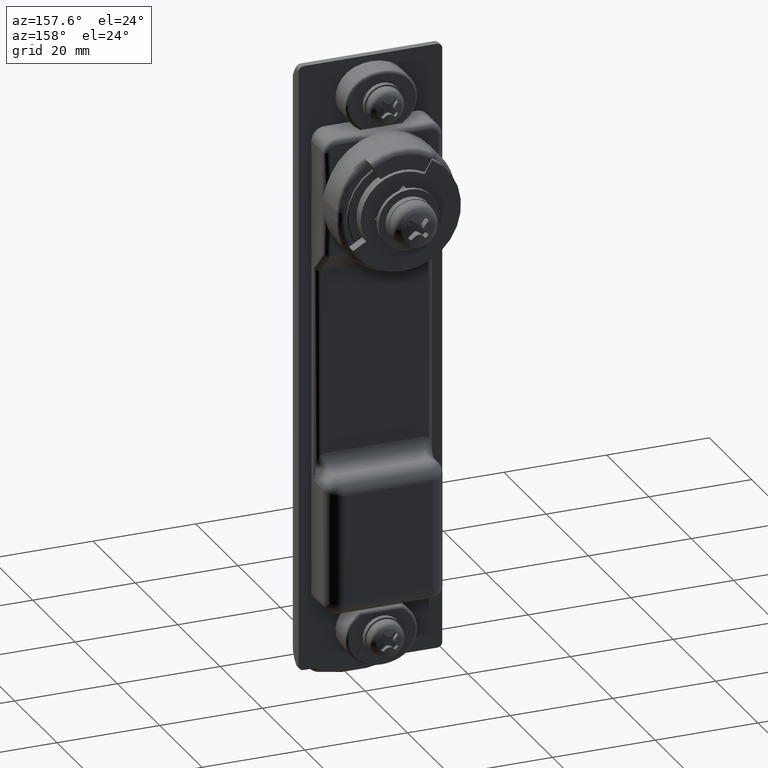
[diagram: clean part render]
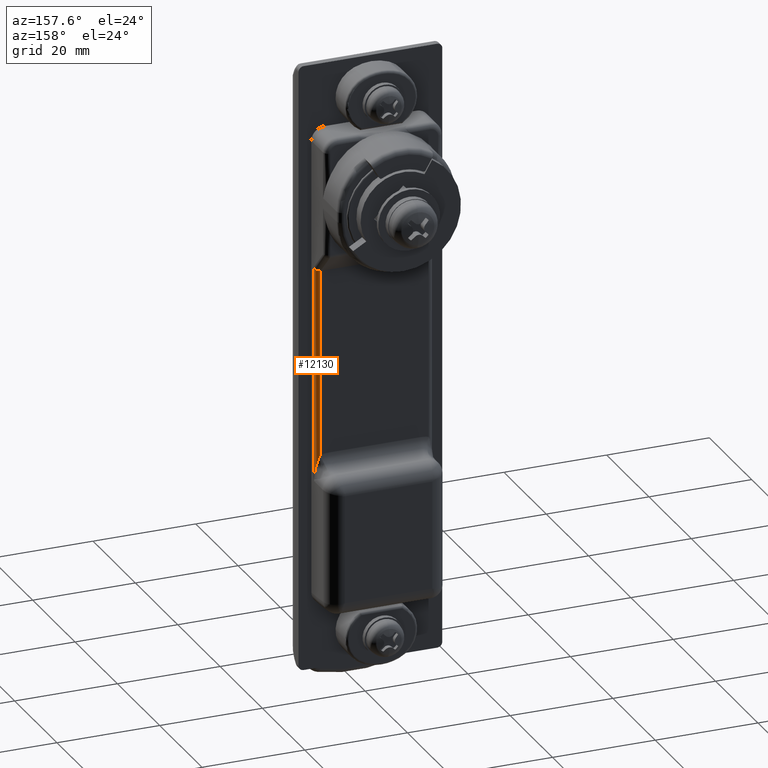
[diagram: same view with one face highlighted and labeled with its STEP entity id]
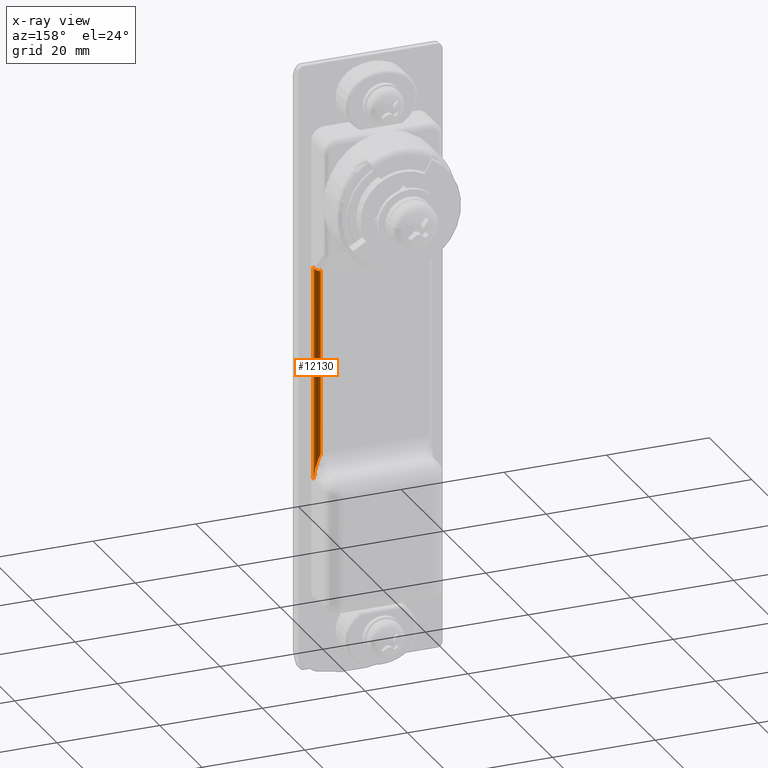
[diagram: x-ray of the same camera — body ghosted, the highlighted face saturated]
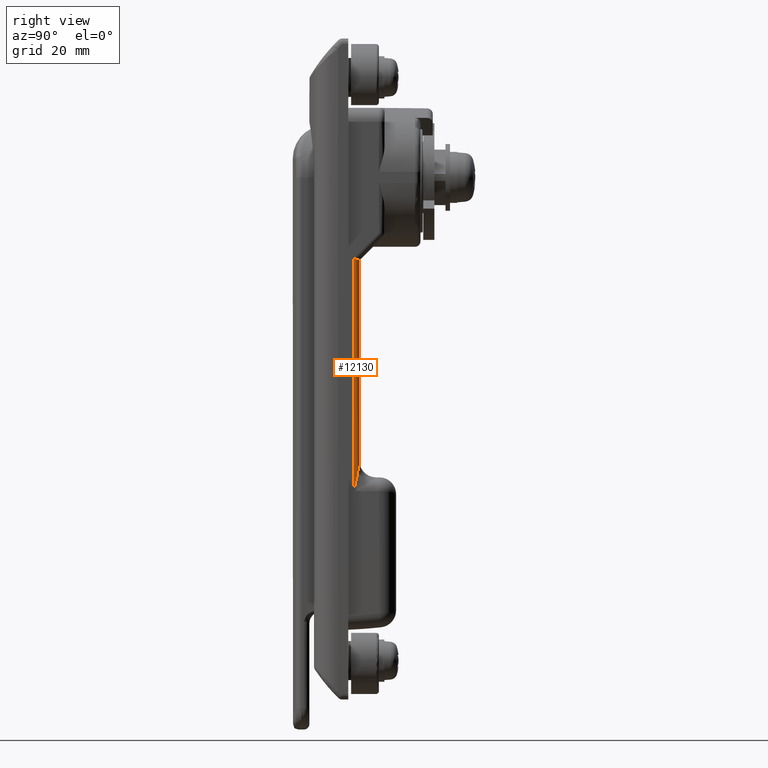
[diagram: same view with one face highlighted and labeled with its STEP entity id]
A machine part, auxiliary view. The second image highlights one B-rep face of the part: STEP entity #12130.
The next image is the same camera in x-ray: the body ghosted, the highlighted face saturated — about 0% of this face is hidden behind the body in this view.
A second angle (right view) of the same face is appended — the face is thin or edge-on in the first view.
In plain terms, the highlighted cylindrical surface (edge-blend (fillet) strip) has radius 1 mm, axis along (0, 0, -1).
Its self-contained STEP definition (entity closure, byte-faithful):
#6392 = CARTESIAN_POINT ( 'NONE',  ( -16.49999999999920100, -11.50000000000000000, -14.53826813408368000 ) ) ;
#6393 = DIRECTION ( 'NONE',  ( 0.0000000000000000000, 0.0000000000000000000, 1.000000000000000000 ) ) ;
#6394 = VECTOR ( 'NONE', #6393, 1000.000000000000000 ) ;
#6395 = CARTESIAN_POINT ( 'NONE',  ( -16.49999999999920100, -11.50000000000000000, 0.0000000000000000000 ) ) ;
#6396 = LINE ( 'NONE', #6395, #6394 ) ;
#6397 = CARTESIAN_POINT ( 'NONE',  ( -16.49999999999920100, -11.50000000000000000, -56.49999999998869500 ) ) ;
#7622 = CARTESIAN_POINT ( 'NONE',  ( -15.49999999999920100, -10.50000000000000000, -51.20849737785950100 ) ) ;
#7623 = CARTESIAN_POINT ( 'NONE',  ( -15.49999999999920100, -10.50000000000000000, -14.95248169645680000 ) ) ;
#7624 = DIRECTION ( 'NONE',  ( 0.0000000000000000000, 0.0000000000000000000, -1.000000000000000000 ) ) ;
#7625 = VECTOR ( 'NONE', #7624, 1000.000000000000000 ) ;
#7626 = CARTESIAN_POINT ( 'NONE',  ( -15.49999999999920100, -10.50000000000000000, -53.99999999998869500 ) ) ;
#7627 = LINE ( 'NONE', #7626, #7625 ) ;
#8789 = CARTESIAN_POINT ( 'NONE',  ( -15.49999999999919700, -10.57765696524607100, -51.29655209969366300 ) ) ;
#8790 = CARTESIAN_POINT ( 'NONE',  ( -15.50814970708195500, -10.63928050898414300, -51.39342759378968100 ) ) ;
#8791 = CARTESIAN_POINT ( 'NONE',  ( -15.53003495125631900, -10.74966751482749500, -51.59434196612645700 ) ) ;
#8792 = CARTESIAN_POINT ( 'NONE',  ( -15.54426289881530600, -10.79783884793714100, -51.69915084513846900 ) ) ;
#8793 = CARTESIAN_POINT ( 'NONE',  ( -15.59164881066092600, -10.92832658160237000, -52.01771840888664400 ) ) ;
#8794 = CARTESIAN_POINT ( 'NONE',  ( -15.62933068370102200, -10.99710156870485800, -52.23541669446586200 ) ) ;
#8795 = CARTESIAN_POINT ( 'NONE',  ( -15.74950696377513600, -11.17635812583795900, -52.89626112327651700 ) ) ;
#8796 = CARTESIAN_POINT ( 'NONE',  ( -15.83852153791321100, -11.25821060076100400, -53.34249401859066400 ) ) ;
#8797 = CARTESIAN_POINT ( 'NONE',  ( -16.02180942596795500, -11.38530833375591900, -54.24113507812099800 ) ) ;
#8798 = CARTESIAN_POINT ( 'NONE',  ( -16.11621424872364400, -11.42877886180302100, -54.69180667415096100 ) ) ;
#8799 = CARTESIAN_POINT ( 'NONE',  ( -16.30696418106149200, -11.48623468283229200, -55.59466335352738800 ) ) ;
#8800 = CARTESIAN_POINT ( 'NONE',  ( -16.40349185452348000, -11.50000000000000500, -56.04733654537700000 ) ) ;
#8801 = CARTESIAN_POINT ( 'NONE',  ( -16.49999999999920100, -11.50000000000000000, -56.49999999998869500 ) ) ;
#8804 =( BOUNDED_CURVE ( )  B_SPLINE_CURVE ( 3, ( #8864, #8863, #8862, #8861 ),
 .UNSPECIFIED., .F., .T. ) 
 B_SPLINE_CURVE_WITH_KNOTS ( ( 4, 4 ),
 ( 4.712388980384689700, 6.283185307179586200 ),
 .UNSPECIFIED. ) 
 CURVE ( )  GEOMETRIC_REPRESENTATION_ITEM ( )  RATIONAL_B_SPLINE_CURVE ( ( 1.000000000000000000, 0.8047378541243649400, 0.8047378541243649400, 1.000000000000000000 ) ) 
 REPRESENTATION_ITEM ( '' )  );
#8805 = B_SPLINE_CURVE_WITH_KNOTS ( 'NONE', 3,
 ( #8801, #8800, #8799, #8798, #8797, #8796, #8795, #8794, #8793, #8792, #8791, #8790, #8789, #8866 ),
 .UNSPECIFIED., .F., .F.,
 ( 4, 2, 2, 2, 2, 2, 4 ),
 ( -1.511300130823522700E-005, 0.001373397718654369900, 0.002761908438616974800, 0.004150419158579579800, 0.004844674518560884500, 0.005191802198551536900, 0.005538929878542190100 ),
 .UNSPECIFIED. ) ;
#8806 = DIRECTION ( 'NONE',  ( -1.000000000000000000, 0.0000000000000000000, 0.0000000000000000000 ) ) ;
#8807 = DIRECTION ( 'NONE',  ( 0.0000000000000000000, 0.0000000000000000000, -1.000000000000000000 ) ) ;
#8808 = CARTESIAN_POINT ( 'NONE',  ( -16.49999999999920100, -10.50000000000000000, 0.0000000000000000000 ) ) ;
#8809 = AXIS2_PLACEMENT_3D ( 'NONE', #8808, #8807, #8806 ) ;
#8810 = CYLINDRICAL_SURFACE ( 'NONE', #8809, 1.000000000000000900 ) ;
#8811 = FACE_OUTER_BOUND ( 'NONE', #12131, .T. ) ;
#8861 = CARTESIAN_POINT ( 'NONE',  ( -15.49999999999920100, -10.50000000000000000, -14.95248169645680000 ) ) ;
#8862 = CARTESIAN_POINT ( 'NONE',  ( -15.49999999999919900, -11.08578643762690600, -14.95248169645677400 ) ) ;
#8863 = CARTESIAN_POINT ( 'NONE',  ( -15.91421356237229500, -11.50000000000000200, -14.78090882120296700 ) ) ;
#8864 = CARTESIAN_POINT ( 'NONE',  ( -16.49999999999920100, -11.50000000000000000, -14.53826813408368000 ) ) ;
#8866 = CARTESIAN_POINT ( 'NONE',  ( -15.49999999999920100, -10.50000000000000000, -51.20849737785950100 ) ) ;
#11319 = VERTEX_POINT ( 'NONE', #6397 ) ;
#11321 = EDGE_CURVE ( 'NONE', #11319, #11322, #6396, .T. ) ;
#11322 = VERTEX_POINT ( 'NONE', #6392 ) ;
#11795 = EDGE_CURVE ( 'NONE', #11796, #11797, #7627, .T. ) ;
#11796 = VERTEX_POINT ( 'NONE', #7623 ) ;
#11797 = VERTEX_POINT ( 'NONE', #7622 ) ;
#12130 = ADVANCED_FACE ( 'NONE', ( #8811 ), #8810, .T. ) ;
#12131 = EDGE_LOOP ( 'NONE', ( #12132, #12133, #12135, #12136 ) ) ;
#12132 = ORIENTED_EDGE ( 'NONE', *, *, #11321, .F. ) ;
#12133 = ORIENTED_EDGE ( 'NONE', *, *, #12134, .T. ) ;
#12134 = EDGE_CURVE ( 'NONE', #11319, #11797, #8805, .T. ) ;
#12135 = ORIENTED_EDGE ( 'NONE', *, *, #11795, .F. ) ;
#12136 = ORIENTED_EDGE ( 'NONE', *, *, #12137, .F. ) ;
#12137 = EDGE_CURVE ( 'NONE', #11322, #11796, #8804, .T. ) ;